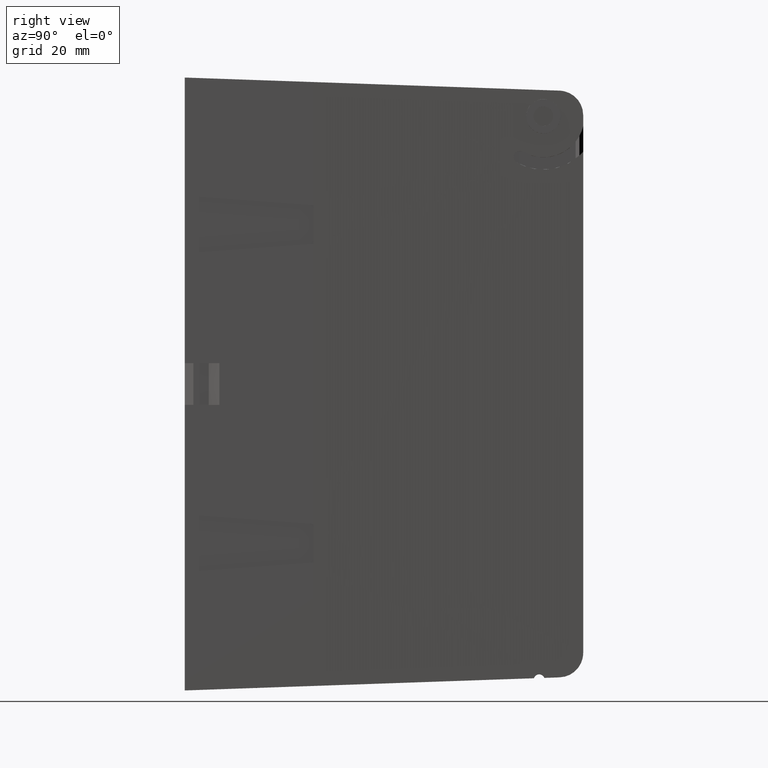
[diagram: clean part render]
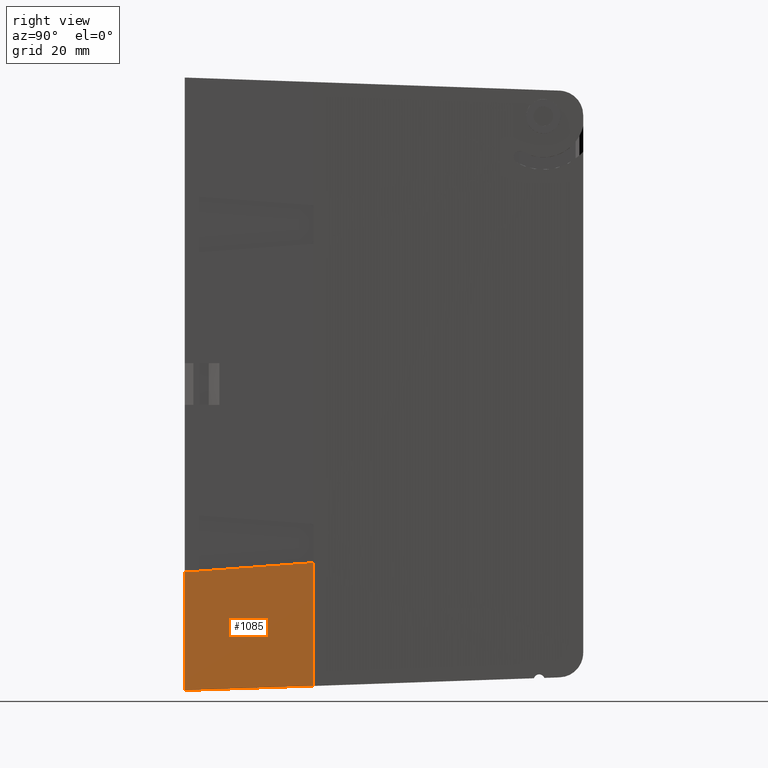
[diagram: same view with one face highlighted and labeled with its STEP entity id]
A machine part, right view. The second image highlights one B-rep face of the part: STEP entity #1085.
In plain terms, the highlighted planar face has unit normal (-1, 0, 0).
Its self-contained STEP definition (entity closure, byte-faithful):
#39 = ORIENTED_EDGE ( 'NONE', *, *, #894, .T. ) ;
#92 = CARTESIAN_POINT ( 'NONE',  ( 0.06800000000000000500, 2.731847993664263200E-016, -1.534999999999999900 ) ) ;
#93 = VERTEX_POINT ( 'NONE', #887 ) ;
#95 = EDGE_CURVE ( 'NONE', #691, #471, #417, .T. ) ;
#129 = DIRECTION ( 'NONE',  ( 0.0000000000000000000, 0.0000000000000000000, -1.000000000000000000 ) ) ;
#148 = CARTESIAN_POINT ( 'NONE',  ( 0.06800000000000013000, 1.050000000000000000, 2.500000000000000000 ) ) ;
#156 = CARTESIAN_POINT ( 'NONE',  ( 0.06800000000000013000, 1.050000000000000000, -2.463333192033665400 ) ) ;
#166 = VECTOR ( 'NONE', #129, 39.37007874015748100 ) ;
#177 = DIRECTION ( 'NONE',  ( 1.218832065035082800E-016, 0.9993908270190957600, 0.03489949670250104600 ) ) ;
#245 = CARTESIAN_POINT ( 'NONE',  ( 0.06800000000000000500, 2.731847993664263200E-016, 2.500000000000000000 ) ) ;
#258 = PLANE ( 'NONE',  #1066 ) ;
#259 = DIRECTION ( 'NONE',  ( -1.000000000000000000, 1.219574997171544800E-016, 0.0000000000000000000 ) ) ;
#260 = DIRECTION ( 'NONE',  ( -1.219574997171544800E-016, -1.000000000000000000, 0.0000000000000000000 ) ) ;
#311 = ORIENTED_EDGE ( 'NONE', *, *, #1008, .F. ) ;
#326 = CARTESIAN_POINT ( 'NONE',  ( 0.06800000000000001900, 0.1743911843603137800, -2.493910125649561500 ) ) ;
#417 = LINE ( 'NONE', #326, #1202 ) ;
#426 = EDGE_CURVE ( 'NONE', #815, #691, #1059, .T. ) ;
#429 = ORIENTED_EDGE ( 'NONE', *, *, #426, .T. ) ;
#438 = LINE ( 'NONE', #148, #166 ) ;
#471 = VERTEX_POINT ( 'NONE', #156 ) ;
#624 = VECTOR ( 'NONE', #653, 39.37007874015748100 ) ;
#640 = CARTESIAN_POINT ( 'NONE',  ( 0.06800000000000000500, 2.731847993664263200E-016, 2.500000000000000000 ) ) ;
#653 = DIRECTION ( 'NONE',  ( 0.0000000000000000000, 0.0000000000000000000, -1.000000000000000000 ) ) ;
#691 = VERTEX_POINT ( 'NONE', #877 ) ;
#815 = VERTEX_POINT ( 'NONE', #92 ) ;
#877 = CARTESIAN_POINT ( 'NONE',  ( 0.06800000000000000500, 2.731847993664263200E-016, -2.500000000000000000 ) ) ;
#885 = ORIENTED_EDGE ( 'NONE', *, *, #95, .T. ) ;
#887 = CARTESIAN_POINT ( 'NONE',  ( 0.06800000000000006000, 1.050000000000000000, -1.457178418152269800 ) ) ;
#894 = EDGE_CURVE ( 'NONE', #93, #815, #1095, .T. ) ;
#936 = DIRECTION ( 'NONE',  ( -1.216239079820384600E-016, -0.9972646886342373400, -0.07391306246704768000 ) ) ;
#939 = FACE_OUTER_BOUND ( 'NONE', #1364, .T. ) ;
#942 = CARTESIAN_POINT ( 'NONE',  ( 0.06800000000000003300, 0.2974234299617652400, -1.512956226858855200 ) ) ;
#1006 = VECTOR ( 'NONE', #936, 39.37007874015748100 ) ;
#1008 = EDGE_CURVE ( 'NONE', #93, #471, #438, .T. ) ;
#1059 = LINE ( 'NONE', #640, #624 ) ;
#1066 = AXIS2_PLACEMENT_3D ( 'NONE', #245, #259, #260 ) ;
#1085 = ADVANCED_FACE ( 'NONE', ( #939 ), #258, .F. ) ;
#1095 = LINE ( 'NONE', #942, #1006 ) ;
#1202 = VECTOR ( 'NONE', #177, 39.37007874015748100 ) ;
#1364 = EDGE_LOOP ( 'NONE', ( #311, #39, #429, #885 ) ) ;